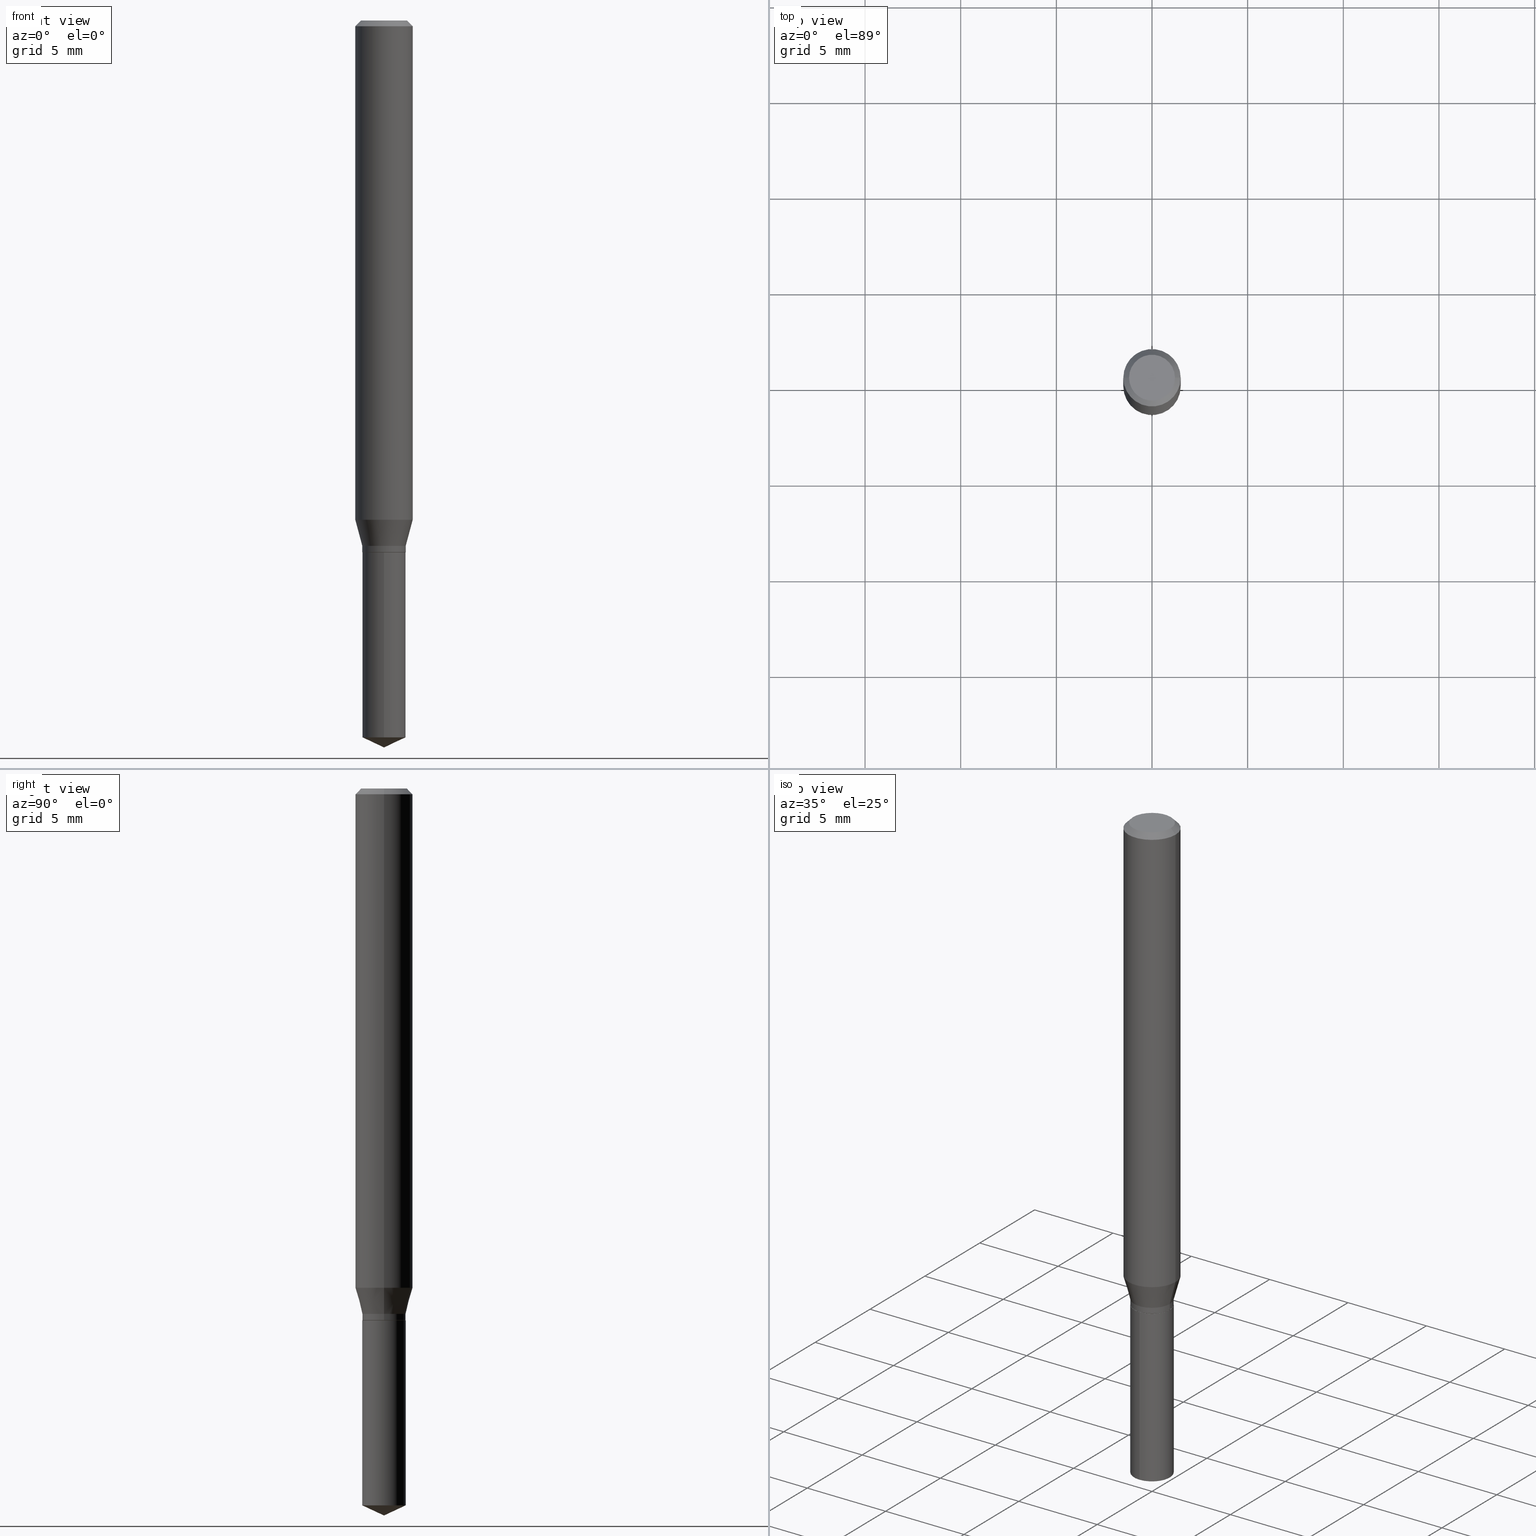
[diagram: canonical four-view strip — front | top / right | iso, engineering-drawing reading convention]
A machine part, canonical four-view strip (front | top / right | iso — engineering-drawing reading convention). The complete STEP part file that produces these views, byte-faithful:
ISO-10303-21;
HEADER;
FILE_DESCRIPTION (( 'STEP AP203' ),
    '1' );
FILE_NAME ('07977.STEP',
    '2024-04-24T07:47:50',
    ( '' ),
    ( '' ),
    'SwSTEP 2.0',
    'SolidWorks 2023',
    '' );
FILE_SCHEMA (( 'CONFIG_CONTROL_DESIGN' ));
ENDSEC;

DATA;
#1 = AXIS2_PLACEMENT_3D ( 'NONE', #364, #164, #395 ) ;
#2 = PLANE ( 'NONE',  #380 ) ;
#3 = ORIENTED_EDGE ( 'NONE', *, *, #102, .F. ) ;
#4 = CIRCLE ( 'NONE', #340, 0.04469999999999999668 ) ;
#5 = CIRCLE ( 'NONE', #88, 0.04469999999999999668 ) ;
#6 = VERTEX_POINT ( 'NONE', #261 ) ;
#7 = CARTESIAN_POINT ( 'NONE',  ( 2.675342873966538993E-29, -3.819680584694400481E-15, -1.093999999999999861 ) ) ;
#8 = DIRECTION ( 'NONE',  ( 1.000000000000000000, -6.982962677686265133E-15, 0.000000000000000000 ) ) ;
#9 = DATE_AND_TIME ( #419, #432 ) ;
#10 = VERTEX_POINT ( 'NONE', #306 ) ;
#11 = CARTESIAN_POINT ( 'NONE',  ( 8.265746106709734507E-48, -1.180129479067563789E-33, -3.380025165646692144E-19 ) ) ;
#12 = DIRECTION ( 'NONE',  ( -2.445458899330790108E-29, 3.491495526022433205E-15, 1.000000000000000000 ) ) ;
#13 = DIRECTION ( 'NONE',  ( 1.000000000000000000, -6.982962677686265922E-15, 0.000000000000000000 ) ) ;
#14 = AXIS2_PLACEMENT_3D ( 'NONE', #165, #99, #434 ) ;
#15 = CONICAL_SURFACE ( 'NONE', #36, 0.04469999999999999668, 0.2617993877991497409 ) ;
#16 = LOCAL_TIME ( 3, 47, 50.00000000000000000, #437 ) ;
#17 = LINE ( 'NONE', #382, #352 ) ;
#18 = PERSON ( 'UNSPECIFIED', 'UNSPECIFIED', 'UNSPECIFIED', ('UNSPECIFIED'), ('UNSPECIFIED'), ('UNSPECIFIED') ) ;
#19 = ORIENTED_EDGE ( 'NONE', *, *, #223, .F. ) ;
#20 = ADVANCED_FACE ( 'NONE', ( #77 ), #75, .T. ) ;
#21 = CARTESIAN_POINT ( 'NONE',  ( 2.888098660104665518E-31, -4.123439461173782112E-17, -0.01181000000000007738 ) ) ;
#22 = APPROVAL_STATUS ( 'not_yet_approved' ) ;
#23 = CARTESIAN_POINT ( 'NONE',  ( 2.676565608369631794E-29, -3.821426325363822773E-15, -1.094499999999999806 ) ) ;
#24 = EDGE_CURVE ( 'NONE', #310, #143, #423, .T. ) ;
#25 = DATE_TIME_ROLE ( 'classification_date' ) ;
#26 = CARTESIAN_POINT ( 'NONE',  ( 2.512829417863088647E-29, -3.587654439907360730E-15, -1.027545070911386027 ) ) ;
#27 = VECTOR ( 'NONE', #393, 39.37007874015748143 ) ;
#28 = APPROVAL_ROLE ( '' ) ;
#29 = DIRECTION ( 'NONE',  ( 1.000000000000000000, -6.982962677686266711E-15, 0.000000000000000000 ) ) ;
#30 = CYLINDRICAL_SURFACE ( 'NONE', #74, 0.04469999999999999668 ) ;
#31 = EDGE_CURVE ( 'NONE', #6, #143, #264, .T. ) ;
#32 = DIRECTION ( 'NONE',  ( -2.445468806185136597E-29, 3.491481338843145583E-15, 1.000000000000000000 ) ) ;
#33 = FACE_OUTER_BOUND ( 'NONE', #43, .T. ) ;
#34 = AXIS2_PLACEMENT_3D ( 'NONE', #470, #193, #341 ) ;
#35 = EDGE_CURVE ( 'NONE', #370, #151, #401, .T. ) ;
#36 = AXIS2_PLACEMENT_3D ( 'NONE', #472, #127, #436 ) ;
#37 = EDGE_CURVE ( 'NONE', #120, #111, #369, .T. ) ;
#38 = AXIS2_PLACEMENT_3D ( 'NONE', #260, #153, #460 ) ;
#39 = EDGE_LOOP ( 'NONE', ( #69, #313, #87, #337 ) ) ;
#40 = ORIENTED_EDGE ( 'NONE', *, *, #446, .F. ) ;
#41 = DIRECTION ( 'NONE',  ( 1.000000000000000000, -6.982962677686266711E-15, 4.876185090822587894E-29 ) ) ;
#42 = CIRCLE ( 'NONE', #250, 0.04724000000000000421 ) ;
#43 = EDGE_LOOP ( 'NONE', ( #3, #486, #219, #375 ) ) ;
#44 = FACE_OUTER_BOUND ( 'NONE', #296, .T. ) ;
#45 = CARTESIAN_POINT ( 'NONE',  ( 2.676565608369631794E-29, -3.821426325363822773E-15, -1.094499999999999806 ) ) ;
#46 = ORIENTED_EDGE ( 'NONE', *, *, #314, .F. ) ;
#47 = ADVANCED_FACE ( 'NONE', ( #444 ), #408, .T. ) ;
#48 = DIRECTION ( 'NONE',  ( 1.000000000000000000, -6.982962677686265922E-15, 0.000000000000000000 ) ) ;
#49 = DIRECTION ( 'NONE',  ( -2.445458899330790108E-29, 3.491495526022433205E-15, 1.000000000000000000 ) ) ;
#50 = EDGE_LOOP ( 'NONE', ( #106, #456, #84, #198 ) ) ;
#51 = PRODUCT_DEFINITION_FORMATION_WITH_SPECIFIED_SOURCE ( 'ANY', '', #484, .NOT_KNOWN. ) ;
#52 = DIRECTION ( 'NONE',  ( -6.982962677686265922E-15, -1.000000000000000000, 6.111516764349582753E-15 ) ) ;
#53 = CARTESIAN_POINT ( 'NONE',  ( -9.261924752013118283E-28, 1.322368428517963298E-13, 37.87397874015748300 ) ) ;
#54 = PERSON_AND_ORGANIZATION ( #18, #391 ) ;
#55 = DIRECTION ( 'NONE',  ( 1.000000000000000000, -6.982962677686266711E-15, 0.000000000000000000 ) ) ;
#56 = EDGE_CURVE ( 'NONE', #268, #310, #254, .T. ) ;
#57 = ADVANCED_FACE ( 'NONE', ( #211 ), #169, .T. ) ;
#58 = DIRECTION ( 'NONE',  ( 1.000000000000000000, -6.982962677686266711E-15, 4.876176775795936353E-29 ) ) ;
#59 = APPROVAL_ROLE ( '' ) ;
#60 = DIRECTION ( 'NONE',  ( 1.000000000000000000, -6.982962677686265922E-15, 4.876176775795935793E-29 ) ) ;
#61 = EDGE_CURVE ( 'NONE', #111, #370, #284, .T. ) ;
#62 = DIRECTION ( 'NONE',  ( 1.000000000000000000, -6.982962677686265922E-15, 0.000000000000000000 ) ) ;
#63 = DIRECTION ( 'NONE',  ( -0.2588190451025210725, 5.211531920934548675E-15, 0.9659258262890682012 ) ) ;
#64 = AXIS2_PLACEMENT_3D ( 'NONE', #478, #237, #55 ) ;
#65 = VECTOR ( 'NONE', #152, 39.37007874015748143 ) ;
#66 = UNCERTAINTY_MEASURE_WITH_UNIT (LENGTH_MEASURE( 1.000000000000000082E-05 ), #224, 'distance_accuracy_value', 'NONE');
#67 = EDGE_LOOP ( 'NONE', ( #334, #161, #302, #40 ) ) ;
#68 = VECTOR ( 'NONE', #441, 39.37007874015748143 ) ;
#69 = ORIENTED_EDGE ( 'NONE', *, *, #245, .F. ) ;
#70 = VERTEX_POINT ( 'NONE', #356 ) ;
#71 = DIRECTION ( 'NONE',  ( -2.445458899330790108E-29, 3.491495526022433205E-15, 1.000000000000000000 ) ) ;
#72 = ORIENTED_EDGE ( 'NONE', *, *, #344, .F. ) ;
#73 = FACE_OUTER_BOUND ( 'NONE', #234, .T. ) ;
#74 = AXIS2_PLACEMENT_3D ( 'NONE', #307, #71, #269 ) ;
#75 = CONICAL_SURFACE ( 'NONE', #381, 84.42940631927456252, 1.134464013796316895 ) ;
#76 =( NAMED_UNIT ( * ) PLANE_ANGLE_UNIT ( ) SI_UNIT ( $, .RADIAN. ) );
#77 = FACE_OUTER_BOUND ( 'NONE', #425, .T. ) ;
#78 = DIRECTION ( 'NONE',  ( 1.000000000000000000, -6.982962677686265922E-15, 0.000000000000000000 ) ) ;
#79 = PRODUCT_RELATED_PRODUCT_CATEGORY ( 'detail', '', ( #484 ) ) ;
#80 = LENGTH_MEASURE_WITH_UNIT ( LENGTH_MEASURE( 0.02539999999999999897 ), #455 );
#81 = DIRECTION ( 'NONE',  ( -2.445468806185136597E-29, 3.491481338843145583E-15, 1.000000000000000000 ) ) ;
#82 = LINE ( 'NONE', #355, #299 ) ;
#83 = EDGE_CURVE ( 'NONE', #10, #420, #351, .T. ) ;
#84 = ORIENTED_EDGE ( 'NONE', *, *, #314, .T. ) ;
#85 = CARTESIAN_POINT ( 'NONE',  ( 2.643796326366751105E-29, -3.774640475423324111E-15, -1.081099999999999950 ) ) ;
#86 = SHAPE_DEFINITION_REPRESENTATION ( #476, #241 ) ;
#87 = ORIENTED_EDGE ( 'NONE', *, *, #446, .T. ) ;
#88 = AXIS2_PLACEMENT_3D ( 'NONE', #116, #49, #52 ) ;
#89 = CARTESIAN_POINT ( 'NONE',  ( 0.04469999999999999668, -4.086778907115899993E-15, -1.081099999999999950 ) ) ;
#90 = EDGE_CURVE ( 'NONE', #151, #370, #298, .T. ) ;
#91 = CARTESIAN_POINT ( 'NONE',  ( 2.643796326366751105E-29, -3.774640475423324111E-15, -1.081099999999999950 ) ) ;
#92 = CARTESIAN_POINT ( 'NONE',  ( 3.176126028848008499E-16, 0.04469999999999484802, -1.475256047680471916 ) ) ;
#93 = DIRECTION ( 'NONE',  ( -6.982962677686267499E-15, -1.000000000000000000, 3.520397390770444404E-15 ) ) ;
#94 = DATE_TIME_ROLE ( 'creation_date' ) ;
#95 = DIRECTION ( 'NONE',  ( -2.445458899330790108E-29, 3.491495526022433205E-15, 1.000000000000000000 ) ) ;
#96 = DATE_AND_TIME ( #443, #135 ) ;
#97 = VECTOR ( 'NONE', #131, 39.37007874015748143 ) ;
#98 = COORDINATED_UNIVERSAL_TIME_OFFSET ( 5, 0, .BEHIND. ) ;
#99 = DIRECTION ( 'NONE',  ( -2.445468806185136597E-29, 3.491481338843145583E-15, 1.000000000000000000 ) ) ;
#100 = CARTESIAN_POINT ( 'NONE',  ( -3.121384316925493074E-16, -0.04470000000000382001, -1.094499999999999806 ) ) ;
#101 = EDGE_CURVE ( 'NONE', #411, #447, #316, .T. ) ;
#102 = EDGE_CURVE ( 'NONE', #268, #6, #321, .T. ) ;
#103 = AXIS2_PLACEMENT_3D ( 'NONE', #474, #274, #435 ) ;
#104 = APPROVAL ( #405, 'UNSPECIFIED' ) ;
#105 = ORIENTED_EDGE ( 'NONE', *, *, #209, .T. ) ;
#106 = ORIENTED_EDGE ( 'NONE', *, *, #445, .F. ) ;
#107 = CIRCLE ( 'NONE', #156, 0.04724000000000000421 ) ;
#108 = DIRECTION ( 'NONE',  ( -2.438088387897960049E-29, 3.491481338843145188E-15, 1.000000000000000000 ) ) ;
#109 = ORIENTED_EDGE ( 'NONE', *, *, #83, .F. ) ;
#110 = PERSON_AND_ORGANIZATION_ROLE ( 'design_owner' ) ;
#111 = VERTEX_POINT ( 'NONE', #130 ) ;
#112 = LINE ( 'NONE', #267, #488 ) ;
#113 = LINE ( 'NONE', #136, #233 ) ;
#114 = APPLICATION_CONTEXT ( 'configuration controlled 3d designs of mechanical parts and assemblies' ) ;
#115 = CARTESIAN_POINT ( 'NONE',  ( 2.675342873966538993E-29, -3.819680584694400481E-15, -1.093999999999999861 ) ) ;
#116 = CARTESIAN_POINT ( 'NONE',  ( 3.607688873643859984E-29, -5.150834362346173430E-15, -1.475256047680471694 ) ) ;
#117 = CC_DESIGN_PERSON_AND_ORGANIZATION_ASSIGNMENT ( #119, #110, ( #484 ) ) ;
#118 = EDGE_CURVE ( 'NONE', #447, #383, #4, .T. ) ;
#119 = PERSON_AND_ORGANIZATION ( #18, #391 ) ;
#120 = VERTEX_POINT ( 'NONE', #406 ) ;
#121 = APPROVAL_DATE_TIME ( #9, #145 ) ;
#122 = ORIENTED_EDGE ( 'NONE', *, *, #223, .T. ) ;
#123 = FACE_OUTER_BOUND ( 'NONE', #39, .T. ) ;
#124 = EDGE_LOOP ( 'NONE', ( #179, #349, #251, #449 ) ) ;
#125 = CARTESIAN_POINT ( 'NONE',  ( -0.05904999999999999832, 3.711095515056362054E-16, -0.01181000000000007738 ) ) ;
#126 = DIRECTION ( 'NONE',  ( -2.445458899330790108E-29, 3.491495526022433599E-15, 1.000000000000000000 ) ) ;
#127 = DIRECTION ( 'NONE',  ( -2.445468806185136597E-29, 3.491481338843145583E-15, 1.000000000000000000 ) ) ;
#128 = FACE_OUTER_BOUND ( 'NONE', #461, .T. ) ;
#129 = ADVANCED_FACE ( 'NONE', ( #33 ), #363, .T. ) ;
#130 = CARTESIAN_POINT ( 'NONE',  ( -0.05905000000000013016, -3.168078954441021238E-15, -1.027545070911386027 ) ) ;
#131 = DIRECTION ( 'NONE',  ( -2.445468806185136877E-29, 3.491481338843145188E-15, 1.000000000000000000 ) ) ;
#132 = CONICAL_SURFACE ( 'NONE', #331, 84.42940631927456252, 1.134464013796316895 ) ;
#133 = FACE_OUTER_BOUND ( 'NONE', #490, .T. ) ;
#134 = CARTESIAN_POINT ( 'NONE',  ( 2.512829417863088647E-29, -3.587654439907360730E-15, -1.027545070911386027 ) ) ;
#135 = LOCAL_TIME ( 3, 47, 50.00000000000000000, #283 ) ;
#136 = CARTESIAN_POINT ( 'NONE',  ( -0.04469999999999999668, 3.176126028847647595E-16, -2.198763985343942906E-30 ) ) ;
#137 = DIRECTION ( 'NONE',  ( -2.445468806185136597E-29, 3.491481338843145583E-15, 1.000000000000000000 ) ) ;
#138 = EDGE_CURVE ( 'NONE', #310, #268, #256, .T. ) ;
#139 = ORIENTED_EDGE ( 'NONE', *, *, #297, .T. ) ;
#140 = EDGE_LOOP ( 'NONE', ( #429, #159 ) ) ;
#141 = CC_DESIGN_DATE_AND_TIME_ASSIGNMENT ( #358, #94, ( #475 ) ) ;
#142 = AXIS2_PLACEMENT_3D ( 'NONE', #7, #195, #232 ) ;
#143 = VERTEX_POINT ( 'NONE', #288 ) ;
#144 = VERTEX_POINT ( 'NONE', #167 ) ;
#145 = APPROVAL ( #416, 'UNSPECIFIED' ) ;
#146 = CC_DESIGN_SECURITY_CLASSIFICATION ( #282, ( #51 ) ) ;
#147 = ORIENTED_EDGE ( 'NONE', *, *, #209, .F. ) ;
#148 = DIRECTION ( 'NONE',  ( 6.439704144417032720E-15, 0.9063077870366524902, 0.4226182617406938902 ) ) ;
#149 = AXIS2_PLACEMENT_3D ( 'NONE', #213, #359, #366 ) ;
#150 = PERSON_AND_ORGANIZATION ( #18, #391 ) ;
#151 = VERTEX_POINT ( 'NONE', #236 ) ;
#152 = DIRECTION ( 'NONE',  ( 0.7071067811865451302, -7.319954787623248157E-15, -0.7071067811865499042 ) ) ;
#153 = DIRECTION ( 'NONE',  ( 0.000000000000000000, 0.000000000000000000, 1.000000000000000000 ) ) ;
#154 = DIRECTION ( 'NONE',  ( 0.7071067811865232589, -2.468850131082003836E-15, 0.7071067811865715536 ) ) ;
#155 = CARTESIAN_POINT ( 'NONE',  ( 8.265746106709734507E-48, -1.180129479067563789E-33, -3.380025165646692144E-19 ) ) ;
#156 = AXIS2_PLACEMENT_3D ( 'NONE', #11, #415, #160 ) ;
#157 = EDGE_CURVE ( 'NONE', #111, #120, #294, .T. ) ;
#158 = MANIFOLD_SOLID_BREP ( 'Body-Move/Copy2[1]', #412 ) ;
#159 = ORIENTED_EDGE ( 'NONE', *, *, #56, .F. ) ;
#160 = DIRECTION ( 'NONE',  ( 1.000000000000000000, -6.982962677686266711E-15, 4.876185090822587894E-29 ) ) ;
#161 = ORIENTED_EDGE ( 'NONE', *, *, #245, .T. ) ;
#162 = CARTESIAN_POINT ( 'NONE',  ( 0.04419999999999999624, -4.130073275717555648E-15, -1.094499999999999806 ) ) ;
#163 = EDGE_CURVE ( 'NONE', #6, #10, #113, .T. ) ;
#164 = DIRECTION ( 'NONE',  ( -2.445458899330790108E-29, 3.491495526022433205E-15, 1.000000000000000000 ) ) ;
#165 = CARTESIAN_POINT ( 'NONE',  ( 2.676565608369631794E-29, -3.821426325363822773E-15, -1.094499999999999806 ) ) ;
#166 = DATE_AND_TIME ( #428, #196 ) ;
#167 = CARTESIAN_POINT ( 'NONE',  ( -3.121384316925400383E-16, -0.04470000000000515228, -1.475256047680471250 ) ) ;
#168 = LINE ( 'NONE', #212, #263 ) ;
#169 = CYLINDRICAL_SURFACE ( 'NONE', #281, 0.04469999999999999668 ) ;
#170 = CYLINDRICAL_SURFACE ( 'NONE', #442, 0.05905000000000006771 ) ;
#171 = FACE_OUTER_BOUND ( 'NONE', #188, .T. ) ;
#172 = CARTESIAN_POINT ( 'NONE',  ( 3.176126028847914329E-16, 0.04469999999999617335, -1.094500000000000028 ) ) ;
#173 = CARTESIAN_POINT ( 'NONE',  ( 0.05905000000000006771, -4.123439461173745257E-16, 2.879382386107503723E-30 ) ) ;
#174 = EDGE_CURVE ( 'NONE', #383, #447, #438, .T. ) ;
#175 = DIRECTION ( 'NONE',  ( 1.000000000000000000, -6.982962677686265133E-15, 0.000000000000000000 ) ) ;
#176 = LINE ( 'NONE', #125, #27 ) ;
#177 = CLOSED_SHELL ( 'NONE', ( #479, #47, #427, #373, #57, #300, #190, #385, #374, #292, #489, #129 ) ) ;
#178 = LOCAL_TIME ( 3, 47, 50.00000000000000000, #279 ) ;
#179 = ORIENTED_EDGE ( 'NONE', *, *, #61, .F. ) ;
#180 = ADVANCED_FACE ( 'NONE', ( #133 ), #132, .T. ) ;
#181 = ORIENTED_EDGE ( 'NONE', *, *, #37, .F. ) ;
#182 = VECTOR ( 'NONE', #148, 39.37007874015748854 ) ;
#183 = ORIENTED_EDGE ( 'NONE', *, *, #174, .F. ) ;
#184 =( NAMED_UNIT ( * ) SI_UNIT ( $, .STERADIAN. ) SOLID_ANGLE_UNIT ( ) );
#185 = ORIENTED_EDGE ( 'NONE', *, *, #210, .T. ) ;
#186 = AXIS2_PLACEMENT_3D ( 'NONE', #21, #350, #315 ) ;
#187 = MECHANICAL_CONTEXT ( 'NONE', #114, 'mechanical' ) ;
#188 = EDGE_LOOP ( 'NONE', ( #231, #258, #122, #266 ) ) ;
#189 = FACE_OUTER_BOUND ( 'NONE', #469, .T. ) ;
#190 = ADVANCED_FACE ( 'NONE', ( #319 ), #15, .T. ) ;
#191 = DIRECTION ( 'NONE',  ( 1.000000000000000000, -6.982962677686265922E-15, 0.000000000000000000 ) ) ;
#192 = EDGE_LOOP ( 'NONE', ( #335, #450, #183, #19 ) ) ;
#193 = DIRECTION ( 'NONE',  ( 2.445458899330789267E-29, -3.491495526022433599E-15, -1.000000000000000000 ) ) ;
#194 = ORIENTED_EDGE ( 'NONE', *, *, #163, .T. ) ;
#195 = DIRECTION ( 'NONE',  ( -2.445468806185136597E-29, 3.491481338843145583E-15, 1.000000000000000000 ) ) ;
#196 = LOCAL_TIME ( 3, 47, 50.00000000000000000, #98 ) ;
#197 = PERSON_AND_ORGANIZATION_ROLE ( 'design_supplier' ) ;
#198 = ORIENTED_EDGE ( 'NONE', *, *, #157, .F. ) ;
#199 = CARTESIAN_POINT ( 'NONE',  ( -0.05904999999999999832, -1.394868931793208948E-15, -0.01181000000000007738 ) ) ;
#200 = DIRECTION ( 'NONE',  ( -1.000000000000000000, 6.982962677686266711E-15, 0.000000000000000000 ) ) ;
#201 = CARTESIAN_POINT ( 'NONE',  ( 3.176126028848008006E-16, 0.04469999999999617335, -1.094500000000000028 ) ) ;
#202 = CALENDAR_DATE ( 2024, 24, 4 ) ;
#203 = CARTESIAN_POINT ( 'NONE',  ( 2.888098660104665518E-31, -4.123439461173782112E-17, -0.01181000000000007738 ) ) ;
#204 = FACE_OUTER_BOUND ( 'NONE', #124, .T. ) ;
#205 = EDGE_CURVE ( 'NONE', #144, #411, #400, .T. ) ;
#206 = CC_DESIGN_PERSON_AND_ORGANIZATION_ASSIGNMENT ( #242, #440, ( #51 ) ) ;
#207 = CALENDAR_DATE ( 2024, 24, 4 ) ;
#208 = ADVANCED_FACE ( 'NONE', ( #171 ), #30, .T. ) ;
#209 = EDGE_CURVE ( 'NONE', #143, #420, #112, .T. ) ;
#210 = EDGE_CURVE ( 'NONE', #70, #379, #107, .T. ) ;
#211 = FACE_OUTER_BOUND ( 'NONE', #346, .T. ) ;
#212 = CARTESIAN_POINT ( 'NONE',  ( 3.658651059288795076E-29, -5.223626456482161457E-15, -1.496099999999999985 ) ) ;
#213 = CARTESIAN_POINT ( 'NONE',  ( 2.676565608369631794E-29, -3.821426325363822773E-15, -1.094499999999999806 ) ) ;
#214 = ADVANCED_FACE ( 'NONE', ( #189 ), #424, .F. ) ;
#215 = VECTOR ( 'NONE', #485, 39.37007874015748854 ) ;
#216 = EDGE_LOOP ( 'NONE', ( #389, #342, #181, #46 ) ) ;
#217 = ORIENTED_EDGE ( 'NONE', *, *, #31, .T. ) ;
#218 = CC_DESIGN_DATE_AND_TIME_ASSIGNMENT ( #96, #25, ( #282 ) ) ;
#219 = ORIENTED_EDGE ( 'NONE', *, *, #24, .T. ) ;
#220 = AXIS2_PLACEMENT_3D ( 'NONE', #328, #365, #200 ) ;
#221 = AXIS2_PLACEMENT_3D ( 'NONE', #317, #265, #191 ) ;
#222 = ORIENTED_EDGE ( 'NONE', *, *, #297, .F. ) ;
#223 = EDGE_CURVE ( 'NONE', #144, #383, #82, .T. ) ;
#224 =( CONVERSION_BASED_UNIT ( 'INCH', #80 ) LENGTH_UNIT ( ) NAMED_UNIT ( #367 ) );
#225 = DIRECTION ( 'NONE',  ( -2.445468806185136597E-29, 3.491481338843145583E-15, 1.000000000000000000 ) ) ;
#226 = DIRECTION ( 'NONE',  ( -6.982962677686267499E-15, -1.000000000000000000, 3.520397390770444404E-15 ) ) ;
#227 = PLANE ( 'NONE',  #463 ) ;
#228 = AXIS2_PLACEMENT_3D ( 'NONE', #482, #398, #58 ) ;
#229 = PERSON_AND_ORGANIZATION_ROLE ( 'creator' ) ;
#230 = CARTESIAN_POINT ( 'NONE',  ( 0.04419999999999999624, -4.130073275717555648E-15, -1.094499999999999806 ) ) ;
#231 = ORIENTED_EDGE ( 'NONE', *, *, #101, .F. ) ;
#232 = DIRECTION ( 'NONE',  ( 1.000000000000000000, -6.982962677686265922E-15, 0.000000000000000000 ) ) ;
#233 = VECTOR ( 'NONE', #287, 39.37007874015748143 ) ;
#234 = EDGE_LOOP ( 'NONE', ( #257, #185 ) ) ;
#235 = LINE ( 'NONE', #347, #65 ) ;
#236 = CARTESIAN_POINT ( 'NONE',  ( 0.05904999999999999832, -4.535783407291118600E-16, -0.01181000000000007738 ) ) ;
#237 = DIRECTION ( 'NONE',  ( -2.445468806185136597E-29, 3.491481338843145583E-15, 1.000000000000000000 ) ) ;
#238 = CARTESIAN_POINT ( 'NONE',  ( 3.607688873643859984E-29, -5.150834362346173430E-15, -1.475256047680471694 ) ) ;
#239 = DIRECTION ( 'NONE',  ( -6.328713451373378056E-15, -0.9063077870366496036, 0.4226182617407002184 ) ) ;
#240 = DIRECTION ( 'NONE',  ( -6.982962677686265922E-15, -1.000000000000000000, 6.111516764349582753E-15 ) ) ;
#241 = ADVANCED_BREP_SHAPE_REPRESENTATION ( '07977', ( #158, #322, #38 ), #290 ) ;
#242 = PERSON_AND_ORGANIZATION ( #18, #391 ) ;
#243 = CARTESIAN_POINT ( 'NONE',  ( -0.05905000000000006771, 4.195754854663396409E-16, -2.904631170795525045E-30 ) ) ;
#244 = CARTESIAN_POINT ( 'NONE',  ( -0.04724000000000000421, 3.504923541997677355E-16, -3.380025165670481712E-19 ) ) ;
#245 = EDGE_CURVE ( 'NONE', #70, #151, #235, .T. ) ;
#246 = CARTESIAN_POINT ( 'NONE',  ( 2.676565608369631794E-29, -3.821426325363822773E-15, -1.094499999999999806 ) ) ;
#247 = LINE ( 'NONE', #173, #97 ) ;
#248 = CIRCLE ( 'NONE', #327, 0.04469999999999999668 ) ;
#249 = AXIS2_PLACEMENT_3D ( 'NONE', #91, #324, #473 ) ;
#250 = AXIS2_PLACEMENT_3D ( 'NONE', #155, #259, #41 ) ;
#251 = ORIENTED_EDGE ( 'NONE', *, *, #402, .T. ) ;
#252 = ORIENTED_EDGE ( 'NONE', *, *, #174, .T. ) ;
#253 = ORIENTED_EDGE ( 'NONE', *, *, #61, .T. ) ;
#254 = CIRCLE ( 'NONE', #14, 0.04419999999999999624 ) ;
#255 = CC_DESIGN_APPROVAL ( #145, ( #475 ) ) ;
#256 = CIRCLE ( 'NONE', #149, 0.04419999999999999624 ) ;
#257 = ORIENTED_EDGE ( 'NONE', *, *, #293, .T. ) ;
#258 = ORIENTED_EDGE ( 'NONE', *, *, #344, .T. ) ;
#259 = DIRECTION ( 'NONE',  ( -2.445468806185136597E-29, 3.491481338843145583E-15, 1.000000000000000000 ) ) ;
#260 = CARTESIAN_POINT ( 'NONE',  ( 0.000000000000000000, 0.000000000000000000, 0.000000000000000000 ) ) ;
#261 = CARTESIAN_POINT ( 'NONE',  ( -0.04469999999999999668, -3.479547927174097783E-15, -1.093999999999999861 ) ) ;
#262 = DIRECTION ( 'NONE',  ( -1.000000000000000000, 6.982962677686265922E-15, -4.876176775795935793E-29 ) ) ;
#263 = VECTOR ( 'NONE', #239, 39.37007874015748854 ) ;
#264 = CIRCLE ( 'NONE', #291, 0.04469999999999999668 ) ;
#265 = DIRECTION ( 'NONE',  ( -2.445468806185136597E-29, 3.491481338843145583E-15, 1.000000000000000000 ) ) ;
#266 = ORIENTED_EDGE ( 'NONE', *, *, #118, .F. ) ;
#267 = CARTESIAN_POINT ( 'NONE',  ( 0.04469999999999999668, -3.121384316925760794E-16, 2.179651018780783095E-30 ) ) ;
#268 = VERTEX_POINT ( 'NONE', #464 ) ;
#269 = DIRECTION ( 'NONE',  ( -6.982962677686265922E-15, -1.000000000000000000, 3.055758382174791377E-15 ) ) ;
#270 = ORIENTED_EDGE ( 'NONE', *, *, #37, .T. ) ;
#271 = VECTOR ( 'NONE', #63, 39.37007874015748143 ) ;
#272 = PERSON_AND_ORGANIZATION ( #18, #391 ) ;
#273 = DIRECTION ( 'NONE',  ( -2.445468806185136597E-29, 3.491481338843145583E-15, 1.000000000000000000 ) ) ;
#274 = DIRECTION ( 'NONE',  ( -2.445458899330790108E-29, 3.491495526022433205E-15, 1.000000000000000000 ) ) ;
#275 = AXIS2_PLACEMENT_3D ( 'NONE', #23, #137, #62 ) ;
#276 = EDGE_CURVE ( 'NONE', #420, #10, #248, .T. ) ;
#277 = CYLINDRICAL_SURFACE ( 'NONE', #228, 0.05905000000000006771 ) ;
#278 = CC_DESIGN_PERSON_AND_ORGANIZATION_ASSIGNMENT ( #272, #323, ( #282 ) ) ;
#279 = COORDINATED_UNIVERSAL_TIME_OFFSET ( 5, 0, .BEHIND. ) ;
#280 = CARTESIAN_POINT ( 'NONE',  ( 0.000000000000000000, 0.000000000000000000, 0.000000000000000000 ) ) ;
#281 = AXIS2_PLACEMENT_3D ( 'NONE', #280, #32, #60 ) ;
#282 = SECURITY_CLASSIFICATION ( '', '', #353 ) ;
#283 = COORDINATED_UNIVERSAL_TIME_OFFSET ( 5, 0, .BEHIND. ) ;
#284 = LINE ( 'NONE', #243, #68 ) ;
#285 = LINE ( 'NONE', #407, #271 ) ;
#286 = DESIGN_CONTEXT ( 'detailed design', #399, 'design' ) ;
#287 = DIRECTION ( 'NONE',  ( -2.445468806185136877E-29, 3.491481338843145188E-15, 1.000000000000000000 ) ) ;
#288 = CARTESIAN_POINT ( 'NONE',  ( 0.04469999999999999668, -4.131819016386977152E-15, -1.093999999999999861 ) ) ;
#289 = ORIENTED_EDGE ( 'NONE', *, *, #414, .T. ) ;
#290 =( GEOMETRIC_REPRESENTATION_CONTEXT ( 3 ) GLOBAL_UNCERTAINTY_ASSIGNED_CONTEXT ( ( #66 ) ) GLOBAL_UNIT_ASSIGNED_CONTEXT ( ( #224, #76, #184 ) ) REPRESENTATION_CONTEXT ( 'NONE', 'WORKASPACE' ) );
#291 = AXIS2_PLACEMENT_3D ( 'NONE', #115, #81, #48 ) ;
#292 = ADVANCED_FACE ( 'NONE', ( #73 ), #227, .F. ) ;
#293 = EDGE_CURVE ( 'NONE', #379, #70, #42, .T. ) ;
#294 = CIRCLE ( 'NONE', #451, 0.05905000000000013016 ) ;
#295 = EDGE_CURVE ( 'NONE', #143, #6, #361, .T. ) ;
#296 = EDGE_LOOP ( 'NONE', ( #454, #217, #105, #109 ) ) ;
#297 = EDGE_CURVE ( 'NONE', #386, #411, #378, .T. ) ;
#298 = CIRCLE ( 'NONE', #64, 0.05904999999999999832 ) ;
#299 = VECTOR ( 'NONE', #343, 39.37007874015748143 ) ;
#300 = ADVANCED_FACE ( 'NONE', ( #44 ), #303, .T. ) ;
#301 = CC_DESIGN_PERSON_AND_ORGANIZATION_ASSIGNMENT ( #468, #197, ( #51 ) ) ;
#302 = ORIENTED_EDGE ( 'NONE', *, *, #90, .T. ) ;
#303 = CYLINDRICAL_SURFACE ( 'NONE', #448, 0.04469999999999999668 ) ;
#304 = CARTESIAN_POINT ( 'NONE',  ( -9.261924752013118283E-28, 1.322368428517963298E-13, 37.87397874015748300 ) ) ;
#305 = CARTESIAN_POINT ( 'NONE',  ( 4.132873053354867254E-48, -5.900647395337818946E-34, -1.690012582823346072E-19 ) ) ;
#306 = CARTESIAN_POINT ( 'NONE',  ( -0.04469999999999999668, -3.479547927174097783E-15, -1.081099999999999950 ) ) ;
#307 = CARTESIAN_POINT ( 'NONE',  ( 2.676565608369631794E-29, -3.821426325363822773E-15, -1.094499999999999806 ) ) ;
#308 = APPROVAL_PERSON_ORGANIZATION ( #54, #376, #28 ) ;
#309 = APPROVAL_ROLE ( '' ) ;
#310 = VERTEX_POINT ( 'NONE', #162 ) ;
#311 = CARTESIAN_POINT ( 'NONE',  ( 0.000000000000000000, 0.000000000000000000, 0.000000000000000000 ) ) ;
#312 = DATE_AND_TIME ( #207, #178 ) ;
#313 = ORIENTED_EDGE ( 'NONE', *, *, #293, .F. ) ;
#314 = EDGE_CURVE ( 'NONE', #420, #120, #17, .T. ) ;
#315 = DIRECTION ( 'NONE',  ( -1.000000000000000000, 6.982962677686266711E-15, 0.000000000000000000 ) ) ;
#316 = LINE ( 'NONE', #172, #320 ) ;
#317 = CARTESIAN_POINT ( 'NONE',  ( 2.676565608369631794E-29, -3.821426325363822773E-15, -1.094499999999999806 ) ) ;
#318 = AXIS2_PLACEMENT_3D ( 'NONE', #85, #421, #78 ) ;
#319 = FACE_OUTER_BOUND ( 'NONE', #50, .T. ) ;
#320 = VECTOR ( 'NONE', #126, 39.37007874015748143 ) ;
#321 = LINE ( 'NONE', #439, #215 ) ;
#322 = MANIFOLD_SOLID_BREP ( 'Body-Move/Copy2[2]', #177 ) ;
#323 = PERSON_AND_ORGANIZATION_ROLE ( 'classification_officer' ) ;
#324 = DIRECTION ( 'NONE',  ( -2.445468806185136597E-29, 3.491481338843145583E-15, 1.000000000000000000 ) ) ;
#325 = DIRECTION ( 'NONE',  ( 1.000000000000000000, -6.982962677686266711E-15, 4.876176775795936353E-29 ) ) ;
#326 = DIRECTION ( 'NONE',  ( -2.445458899330790108E-29, 3.491495526022433205E-15, 1.000000000000000000 ) ) ;
#327 = AXIS2_PLACEMENT_3D ( 'NONE', #426, #225, #13 ) ;
#328 = CARTESIAN_POINT ( 'NONE',  ( 2.888098660104665518E-31, -4.123439461173782112E-17, -0.01181000000000007738 ) ) ;
#329 = ORIENTED_EDGE ( 'NONE', *, *, #90, .F. ) ;
#330 = EDGE_LOOP ( 'NONE', ( #466, #354, #458, #410 ) ) ;
#331 = AXIS2_PLACEMENT_3D ( 'NONE', #53, #95, #93 ) ;
#332 = AXIS2_PLACEMENT_3D ( 'NONE', #238, #404, #240 ) ;
#333 = CONICAL_SURFACE ( 'NONE', #318, 0.04469999999999999668, 0.2617993877991497409 ) ;
#334 = ORIENTED_EDGE ( 'NONE', *, *, #210, .F. ) ;
#335 = ORIENTED_EDGE ( 'NONE', *, *, #205, .T. ) ;
#336 = FACE_OUTER_BOUND ( 'NONE', #140, .T. ) ;
#337 = ORIENTED_EDGE ( 'NONE', *, *, #35, .T. ) ;
#338 = APPLICATION_PROTOCOL_DEFINITION ( 'international standard', 'config_control_design', 1994, #114 ) ;
#339 = ORIENTED_EDGE ( 'NONE', *, *, #402, .F. ) ;
#340 = AXIS2_PLACEMENT_3D ( 'NONE', #246, #326, #481 ) ;
#341 = DIRECTION ( 'NONE',  ( 6.982962677686265922E-15, 1.000000000000000000, -3.491495526022433599E-15 ) ) ;
#342 = ORIENTED_EDGE ( 'NONE', *, *, #445, .T. ) ;
#343 = DIRECTION ( 'NONE',  ( -2.445458899330790108E-29, 3.491495526022433599E-15, 1.000000000000000000 ) ) ;
#344 = EDGE_CURVE ( 'NONE', #411, #144, #5, .T. ) ;
#345 = DIRECTION ( 'NONE',  ( 1.000000000000000000, -6.982962677686265922E-15, 4.876176775795935793E-29 ) ) ;
#346 = EDGE_LOOP ( 'NONE', ( #417, #194, #377, #147 ) ) ;
#347 = CARTESIAN_POINT ( 'NONE',  ( 0.05904999999999999832, -4.463468013801467941E-16, -0.01181000000000007738 ) ) ;
#348 = PERSON_AND_ORGANIZATION ( #18, #391 ) ;
#349 = ORIENTED_EDGE ( 'NONE', *, *, #157, .T. ) ;
#350 = DIRECTION ( 'NONE',  ( 2.445468806185136597E-29, -3.491481338843145583E-15, -1.000000000000000000 ) ) ;
#351 = CIRCLE ( 'NONE', #249, 0.04469999999999999668 ) ;
#352 = VECTOR ( 'NONE', #459, 39.37007874015748143 ) ;
#353 = SECURITY_CLASSIFICATION_LEVEL ( 'unclassified' ) ;
#354 = ORIENTED_EDGE ( 'NONE', *, *, #102, .T. ) ;
#355 = CARTESIAN_POINT ( 'NONE',  ( -3.121384316925493074E-16, -0.04470000000000382001, -1.094499999999999806 ) ) ;
#356 = CARTESIAN_POINT ( 'NONE',  ( 0.04724000000000000421, -3.852183633974369838E-16, -3.380025165621689721E-19 ) ) ;
#357 = FACE_OUTER_BOUND ( 'NONE', #330, .T. ) ;
#358 = DATE_AND_TIME ( #202, #16 ) ;
#359 = DIRECTION ( 'NONE',  ( -2.445468806185136597E-29, 3.491481338843145583E-15, 1.000000000000000000 ) ) ;
#360 = FACE_OUTER_BOUND ( 'NONE', #192, .T. ) ;
#361 = CIRCLE ( 'NONE', #142, 0.04469999999999999668 ) ;
#362 = CARTESIAN_POINT ( 'NONE',  ( 3.658651059288794515E-29, -5.223626456482161457E-15, -1.496099999999999985 ) ) ;
#363 = CONICAL_SURFACE ( 'NONE', #275, 0.04419999999999999624, 0.7853981633974141952 ) ;
#364 = CARTESIAN_POINT ( 'NONE',  ( 2.676565608369631794E-29, -3.821426325363822773E-15, -1.094499999999999806 ) ) ;
#365 = DIRECTION ( 'NONE',  ( 2.445468806185136597E-29, -3.491481338843145583E-15, -1.000000000000000000 ) ) ;
#366 = DIRECTION ( 'NONE',  ( 1.000000000000000000, -6.982962677686265922E-15, 0.000000000000000000 ) ) ;
#367 = DIMENSIONAL_EXPONENTS ( 1.000000000000000000, 0.000000000000000000, 0.000000000000000000, 0.000000000000000000, 0.000000000000000000, 0.000000000000000000, 0.000000000000000000 ) ;
#368 = DIRECTION ( 'NONE',  ( -2.445468806185136597E-29, 3.491481338843145583E-15, 1.000000000000000000 ) ) ;
#369 = CIRCLE ( 'NONE', #431, 0.05905000000000013016 ) ;
#370 = VERTEX_POINT ( 'NONE', #199 ) ;
#371 = CC_DESIGN_APPROVAL ( #376, ( #51 ) ) ;
#372 = ORIENTED_EDGE ( 'NONE', *, *, #414, .F. ) ;
#373 = ADVANCED_FACE ( 'NONE', ( #467 ), #333, .T. ) ;
#374 = ADVANCED_FACE ( 'NONE', ( #123 ), #409, .T. ) ;
#375 = ORIENTED_EDGE ( 'NONE', *, *, #31, .F. ) ;
#376 = APPROVAL ( #22, 'UNSPECIFIED' ) ;
#377 = ORIENTED_EDGE ( 'NONE', *, *, #276, .F. ) ;
#378 = LINE ( 'NONE', #387, #182 ) ;
#379 = VERTEX_POINT ( 'NONE', #244 ) ;
#380 = AXIS2_PLACEMENT_3D ( 'NONE', #45, #108, #345 ) ;
#381 = AXIS2_PLACEMENT_3D ( 'NONE', #304, #12, #226 ) ;
#382 = CARTESIAN_POINT ( 'NONE',  ( 0.04469999999999999668, -4.086778907115899993E-15, -1.081099999999999950 ) ) ;
#383 = VERTEX_POINT ( 'NONE', #100 ) ;
#384 = DIRECTION ( 'NONE',  ( -2.445468806185136877E-29, 3.491481338843145188E-15, 1.000000000000000000 ) ) ;
#385 = ADVANCED_FACE ( 'NONE', ( #204 ), #170, .T. ) ;
#386 = VERTEX_POINT ( 'NONE', #362 ) ;
#387 = CARTESIAN_POINT ( 'NONE',  ( 3.658672935554494692E-29, -5.223595400746700193E-15, -1.496099999999999985 ) ) ;
#388 = ADVANCED_FACE ( 'NONE', ( #360 ), #480, .T. ) ;
#389 = ORIENTED_EDGE ( 'NONE', *, *, #276, .T. ) ;
#390 = DIRECTION ( 'NONE',  ( 2.438088387897960049E-29, -3.491481338843145188E-15, -1.000000000000000000 ) ) ;
#391 = ORGANIZATION ( 'UNSPECIFIED', 'UNSPECIFIED', '' ) ;
#392 = DIRECTION ( 'NONE',  ( -2.445468806185136597E-29, 3.491481338843145583E-15, 1.000000000000000000 ) ) ;
#393 = DIRECTION ( 'NONE',  ( -0.7071067811865451302, 2.468850131082231817E-15, -0.7071067811865499042 ) ) ;
#394 = CC_DESIGN_PERSON_AND_ORGANIZATION_ASSIGNMENT ( #150, #229, ( #475 ) ) ;
#395 = DIRECTION ( 'NONE',  ( -6.982962677686265922E-15, -1.000000000000000000, 3.055758382174791377E-15 ) ) ;
#396 = APPROVAL_DATE_TIME ( #312, #376 ) ;
#397 = DIRECTION ( 'NONE',  ( -2.445468806185136597E-29, 3.491481338843145583E-15, 1.000000000000000000 ) ) ;
#398 = DIRECTION ( 'NONE',  ( -2.445468806185136597E-29, 3.491481338843145583E-15, 1.000000000000000000 ) ) ;
#399 = APPLICATION_CONTEXT ( 'configuration controlled 3d designs of mechanical parts and assemblies' ) ;
#400 = CIRCLE ( 'NONE', #332, 0.04469999999999999668 ) ;
#401 = CIRCLE ( 'NONE', #462, 0.05904999999999999832 ) ;
#402 = EDGE_CURVE ( 'NONE', #120, #151, #247, .T. ) ;
#403 = CONICAL_SURFACE ( 'NONE', #221, 0.04419999999999999624, 0.7853981633974141952 ) ;
#404 = DIRECTION ( 'NONE',  ( -2.445458899330790108E-29, 3.491495526022433205E-15, 1.000000000000000000 ) ) ;
#405 = APPROVAL_STATUS ( 'not_yet_approved' ) ;
#406 = CARTESIAN_POINT ( 'NONE',  ( 0.05905000000000013016, -3.999998386024736439E-15, -1.027545070911386027 ) ) ;
#407 = CARTESIAN_POINT ( 'NONE',  ( -0.04469999999999999668, -3.457027872538559598E-15, -1.081099999999999950 ) ) ;
#408 = CONICAL_SURFACE ( 'NONE', #220, 0.05904999999999999832, 0.7853981633974449483 ) ;
#409 = CONICAL_SURFACE ( 'NONE', #186, 0.05904999999999999832, 0.7853981633974449483 ) ;
#410 = ORIENTED_EDGE ( 'NONE', *, *, #24, .F. ) ;
#411 = VERTEX_POINT ( 'NONE', #92 ) ;
#412 = CLOSED_SHELL ( 'NONE', ( #388, #180, #20, #208, #214 ) ) ;
#413 = APPROVAL_PERSON_ORGANIZATION ( #477, #104, #59 ) ;
#414 = EDGE_CURVE ( 'NONE', #386, #144, #168, .T. ) ;
#415 = DIRECTION ( 'NONE',  ( -2.445468806185136597E-29, 3.491481338843145583E-15, 1.000000000000000000 ) ) ;
#416 = APPROVAL_STATUS ( 'not_yet_approved' ) ;
#417 = ORIENTED_EDGE ( 'NONE', *, *, #295, .T. ) ;
#418 = DIRECTION ( 'NONE',  ( 1.000000000000000000, -6.982962677686265922E-15, 4.876176775795935793E-29 ) ) ;
#419 = CALENDAR_DATE ( 2024, 24, 4 ) ;
#420 = VERTEX_POINT ( 'NONE', #89 ) ;
#421 = DIRECTION ( 'NONE',  ( -2.445468806185136597E-29, 3.491481338843145583E-15, 1.000000000000000000 ) ) ;
#422 = APPLICATION_PROTOCOL_DEFINITION ( 'international standard', 'config_control_design', 1994, #399 ) ;
#423 = LINE ( 'NONE', #230, #483 ) ;
#424 = PLANE ( 'NONE',  #34 ) ;
#425 = EDGE_LOOP ( 'NONE', ( #222, #289, #72 ) ) ;
#426 = CARTESIAN_POINT ( 'NONE',  ( 2.643796326366751105E-29, -3.774640475423324111E-15, -1.081099999999999950 ) ) ;
#427 = ADVANCED_FACE ( 'NONE', ( #128 ), #277, .T. ) ;
#428 = CALENDAR_DATE ( 2024, 24, 4 ) ;
#429 = ORIENTED_EDGE ( 'NONE', *, *, #138, .F. ) ;
#430 = CARTESIAN_POINT ( 'NONE',  ( 0.000000000000000000, 0.000000000000000000, 0.000000000000000000 ) ) ;
#431 = AXIS2_PLACEMENT_3D ( 'NONE', #134, #397, #175 ) ;
#432 = LOCAL_TIME ( 3, 47, 50.00000000000000000, #465 ) ;
#433 = APPROVAL_DATE_TIME ( #166, #104 ) ;
#434 = DIRECTION ( 'NONE',  ( 1.000000000000000000, -6.982962677686265922E-15, 0.000000000000000000 ) ) ;
#435 = DIRECTION ( 'NONE',  ( -6.982962677686265922E-15, -1.000000000000000000, 3.055758382174791377E-15 ) ) ;
#436 = DIRECTION ( 'NONE',  ( 1.000000000000000000, -6.982962677686265922E-15, 0.000000000000000000 ) ) ;
#437 = COORDINATED_UNIVERSAL_TIME_OFFSET ( 5, 0, .BEHIND. ) ;
#438 = CIRCLE ( 'NONE', #1, 0.04469999999999999668 ) ;
#439 = CARTESIAN_POINT ( 'NONE',  ( -0.04419999999999999624, -3.507366436157858370E-15, -1.094499999999999806 ) ) ;
#440 = PERSON_AND_ORGANIZATION_ROLE ( 'creator' ) ;
#441 = DIRECTION ( 'NONE',  ( -2.445468806185136877E-29, 3.491481338843145188E-15, 1.000000000000000000 ) ) ;
#442 = AXIS2_PLACEMENT_3D ( 'NONE', #430, #368, #325 ) ;
#443 = CALENDAR_DATE ( 2024, 24, 4 ) ;
#444 = FACE_OUTER_BOUND ( 'NONE', #67, .T. ) ;
#445 = EDGE_CURVE ( 'NONE', #10, #111, #285, .T. ) ;
#446 = EDGE_CURVE ( 'NONE', #379, #370, #176, .T. ) ;
#447 = VERTEX_POINT ( 'NONE', #201 ) ;
#448 = AXIS2_PLACEMENT_3D ( 'NONE', #311, #457, #418 ) ;
#449 = ORIENTED_EDGE ( 'NONE', *, *, #35, .F. ) ;
#450 = ORIENTED_EDGE ( 'NONE', *, *, #101, .T. ) ;
#451 = AXIS2_PLACEMENT_3D ( 'NONE', #26, #392, #8 ) ;
#452 = ORIENTED_EDGE ( 'NONE', *, *, #205, .F. ) ;
#453 = CC_DESIGN_APPROVAL ( #104, ( #282 ) ) ;
#454 = ORIENTED_EDGE ( 'NONE', *, *, #163, .F. ) ;
#455 =( LENGTH_UNIT ( ) NAMED_UNIT ( * ) SI_UNIT ( $, .METRE. ) );
#456 = ORIENTED_EDGE ( 'NONE', *, *, #83, .T. ) ;
#457 = DIRECTION ( 'NONE',  ( -2.445468806185136597E-29, 3.491481338843145583E-15, 1.000000000000000000 ) ) ;
#458 = ORIENTED_EDGE ( 'NONE', *, *, #295, .F. ) ;
#459 = DIRECTION ( 'NONE',  ( 0.2588190451025210725, 1.565188264969624137E-15, 0.9659258262890682012 ) ) ;
#460 = DIRECTION ( 'NONE',  ( 1.000000000000000000, 0.000000000000000000, 0.000000000000000000 ) ) ;
#461 = EDGE_LOOP ( 'NONE', ( #270, #253, #329, #339 ) ) ;
#462 = AXIS2_PLACEMENT_3D ( 'NONE', #203, #273, #29 ) ;
#463 = AXIS2_PLACEMENT_3D ( 'NONE', #305, #390, #262 ) ;
#464 = CARTESIAN_POINT ( 'NONE',  ( -0.04419999999999999624, -3.504717208983747563E-15, -1.094499999999999806 ) ) ;
#465 = COORDINATED_UNIVERSAL_TIME_OFFSET ( 5, 0, .BEHIND. ) ;
#466 = ORIENTED_EDGE ( 'NONE', *, *, #138, .T. ) ;
#467 = FACE_OUTER_BOUND ( 'NONE', #216, .T. ) ;
#468 = PERSON_AND_ORGANIZATION ( #18, #391 ) ;
#469 = EDGE_LOOP ( 'NONE', ( #252, #487 ) ) ;
#470 = CARTESIAN_POINT ( 'NONE',  ( 2.676565608369631794E-29, -3.821426325363822773E-15, -1.094499999999999806 ) ) ;
#471 = APPROVAL_PERSON_ORGANIZATION ( #348, #145, #309 ) ;
#472 = CARTESIAN_POINT ( 'NONE',  ( 2.643796326366751105E-29, -3.774640475423324111E-15, -1.081099999999999950 ) ) ;
#473 = DIRECTION ( 'NONE',  ( 1.000000000000000000, -6.982962677686265922E-15, 0.000000000000000000 ) ) ;
#474 = CARTESIAN_POINT ( 'NONE',  ( 2.676565608369631794E-29, -3.821426325363822773E-15, -1.094499999999999806 ) ) ;
#475 = PRODUCT_DEFINITION ( 'UNKNOWN', '', #51, #286 ) ;
#476 = PRODUCT_DEFINITION_SHAPE ( 'NONE', 'NONE',  #475 ) ;
#477 = PERSON_AND_ORGANIZATION ( #18, #391 ) ;
#478 = CARTESIAN_POINT ( 'NONE',  ( 2.888098660104665518E-31, -4.123439461173782112E-17, -0.01181000000000007738 ) ) ;
#479 = ADVANCED_FACE ( 'NONE', ( #357 ), #403, .T. ) ;
#480 = CYLINDRICAL_SURFACE ( 'NONE', #103, 0.04469999999999999668 ) ;
#481 = DIRECTION ( 'NONE',  ( -6.982962677686265922E-15, -1.000000000000000000, 3.055758382174791377E-15 ) ) ;
#482 = CARTESIAN_POINT ( 'NONE',  ( 0.000000000000000000, 0.000000000000000000, 0.000000000000000000 ) ) ;
#483 = VECTOR ( 'NONE', #154, 39.37007874015748854 ) ;
#484 = PRODUCT ( '07977', '07977', '', ( #187 ) ) ;
#485 = DIRECTION ( 'NONE',  ( -0.7071067811865232589, 7.493145998870265808E-15, 0.7071067811865715536 ) ) ;
#486 = ORIENTED_EDGE ( 'NONE', *, *, #56, .T. ) ;
#487 = ORIENTED_EDGE ( 'NONE', *, *, #118, .T. ) ;
#488 = VECTOR ( 'NONE', #384, 39.37007874015748143 ) ;
#489 = ADVANCED_FACE ( 'NONE', ( #336 ), #2, .F. ) ;
#490 = EDGE_LOOP ( 'NONE', ( #372, #139, #452 ) ) ;
ENDSEC;
END-ISO-10303-21;
